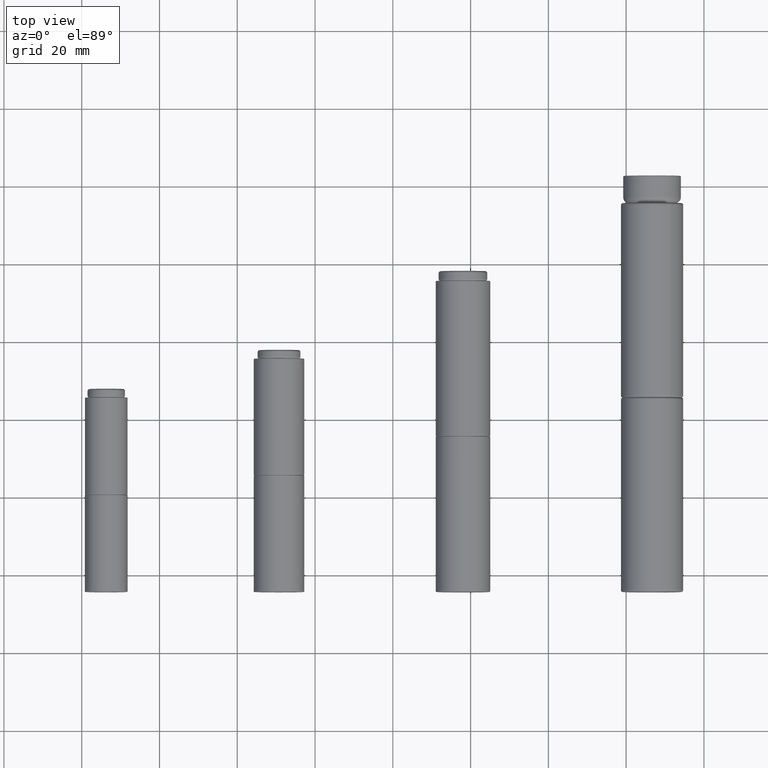
[diagram: clean part render]
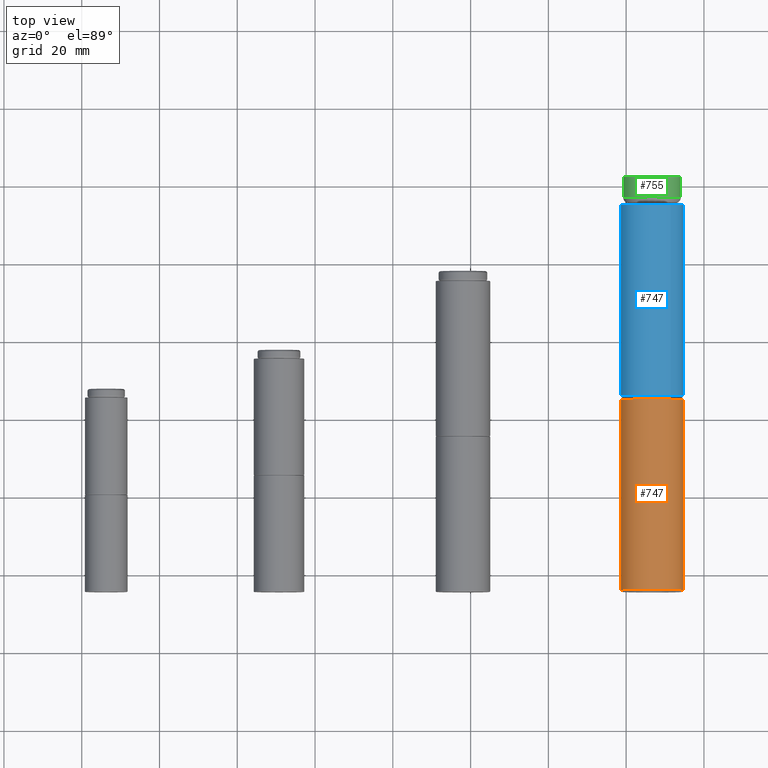
[diagram: same view with three faces highlighted in distinct colors, each labeled with its STEP entity id]
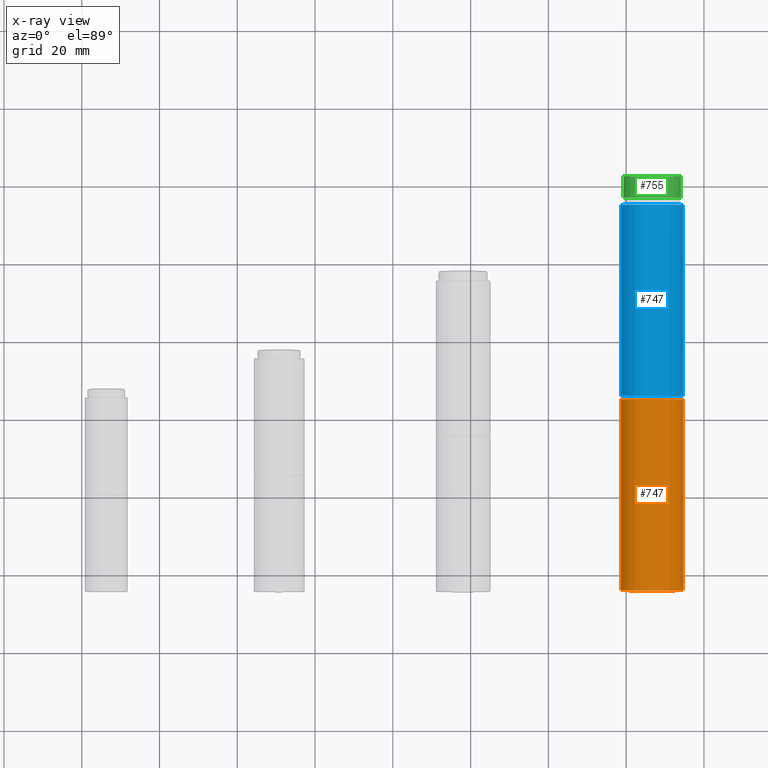
[diagram: x-ray of the same camera — body ghosted, the three highlighted faces saturated]
A machine part, top view with three faces highlighted in distinct colors.
The next image is the same camera in x-ray (body ghosted, the three faces saturated) — at least one of them is partly hidden behind the body in this view.
Their STEP definitions:

[orange] entity #747 — the highlighted cylindrical surface (bore or boss wall) has radius 8 mm, axis along (0, 1, 0).
#140=CYLINDRICAL_SURFACE('',#867,8.);
#179=FACE_BOUND('',#336,.T.);
#239=FACE_OUTER_BOUND('',#335,.T.);
#335=EDGE_LOOP('',(#635));
#336=EDGE_LOOP('',(#636));
#421=CIRCLE('',#866,8.);
#422=CIRCLE('',#868,8.);
#481=VERTEX_POINT('',#1359);
#482=VERTEX_POINT('',#1362);
#541=EDGE_CURVE('',#481,#481,#421,.T.);
#542=EDGE_CURVE('',#482,#482,#422,.T.);
#635=ORIENTED_EDGE('',*,*,#542,.F.);
#636=ORIENTED_EDGE('',*,*,#541,.F.);
#747=ADVANCED_FACE('',(#239,#179),#140,.T.);
#866=AXIS2_PLACEMENT_3D('',#1360,#1102,#1103);
#867=AXIS2_PLACEMENT_3D('',#1361,#1104,#1105);
#868=AXIS2_PLACEMENT_3D('',#1363,#1106,#1107);
#1102=DIRECTION('center_axis',(0.,0.,-1.));
#1103=DIRECTION('ref_axis',(-1.,0.,0.));
#1104=DIRECTION('center_axis',(0.,0.,1.));
#1105=DIRECTION('ref_axis',(-1.,0.,0.));
#1106=DIRECTION('center_axis',(0.,0.,1.));
#1107=DIRECTION('ref_axis',(-1.,0.,0.));
#1359=CARTESIAN_POINT('',(8.,-9.79717439317883E-16,0.5));
#1360=CARTESIAN_POINT('Origin',(0.,0.,0.5));
#1361=CARTESIAN_POINT('Origin',(0.,0.,0.));
#1362=CARTESIAN_POINT('',(8.,9.79717439317883E-16,49.5));
#1363=CARTESIAN_POINT('Origin',(0.,0.,49.5));

[blue] entity #747 — the highlighted cylindrical surface (bore or boss wall) has radius 8 mm, axis along (0, 1, 0).
#140=CYLINDRICAL_SURFACE('',#867,8.);
#179=FACE_BOUND('',#336,.T.);
#239=FACE_OUTER_BOUND('',#335,.T.);
#335=EDGE_LOOP('',(#635));
#336=EDGE_LOOP('',(#636));
#421=CIRCLE('',#866,8.);
#422=CIRCLE('',#868,8.);
#481=VERTEX_POINT('',#1359);
#482=VERTEX_POINT('',#1362);
#541=EDGE_CURVE('',#481,#481,#421,.T.);
#542=EDGE_CURVE('',#482,#482,#422,.T.);
#635=ORIENTED_EDGE('',*,*,#542,.F.);
#636=ORIENTED_EDGE('',*,*,#541,.F.);
#747=ADVANCED_FACE('',(#239,#179),#140,.T.);
#866=AXIS2_PLACEMENT_3D('',#1360,#1102,#1103);
#867=AXIS2_PLACEMENT_3D('',#1361,#1104,#1105);
#868=AXIS2_PLACEMENT_3D('',#1363,#1106,#1107);
#1102=DIRECTION('center_axis',(0.,0.,-1.));
#1103=DIRECTION('ref_axis',(-1.,0.,0.));
#1104=DIRECTION('center_axis',(0.,0.,1.));
#1105=DIRECTION('ref_axis',(-1.,0.,0.));
#1106=DIRECTION('center_axis',(0.,0.,1.));
#1107=DIRECTION('ref_axis',(-1.,0.,0.));
#1359=CARTESIAN_POINT('',(8.,-9.79717439317883E-16,0.5));
#1360=CARTESIAN_POINT('Origin',(0.,0.,0.5));
#1361=CARTESIAN_POINT('Origin',(0.,0.,0.));
#1362=CARTESIAN_POINT('',(8.,9.79717439317883E-16,49.5));
#1363=CARTESIAN_POINT('Origin',(0.,0.,49.5));

[green] entity #755 — the highlighted cylindrical surface (bore or boss wall) has radius 7.4 mm, axis along (0, 1, 0).
#142=CYLINDRICAL_SURFACE('',#884,7.4);
#186=FACE_BOUND('',#351,.T.);
#247=FACE_OUTER_BOUND('',#350,.T.);
#350=EDGE_LOOP('',(#650));
#351=EDGE_LOOP('',(#651));
#428=CIRCLE('',#882,7.4);
#430=CIRCLE('',#885,7.4);
#488=VERTEX_POINT('',#1382);
#490=VERTEX_POINT('',#1387);
#548=EDGE_CURVE('',#488,#488,#428,.T.);
#550=EDGE_CURVE('',#490,#490,#430,.T.);
#650=ORIENTED_EDGE('',*,*,#550,.F.);
#651=ORIENTED_EDGE('',*,*,#548,.F.);
#755=ADVANCED_FACE('',(#247,#186),#142,.T.);
#882=AXIS2_PLACEMENT_3D('',#1383,#1134,#1135);
#884=AXIS2_PLACEMENT_3D('',#1386,#1138,#1139);
#885=AXIS2_PLACEMENT_3D('',#1388,#1140,#1141);
#1134=DIRECTION('center_axis',(-1.22124532708767E-16,1.,0.));
#1135=DIRECTION('ref_axis',(1.,1.21899487501073E-16,0.));
#1138=DIRECTION('center_axis',(-1.22124532708767E-16,1.,0.));
#1139=DIRECTION('ref_axis',(-1.,0.,0.));
#1140=DIRECTION('center_axis',(1.22124532708767E-16,-1.,0.));
#1141=DIRECTION('ref_axis',(1.,1.12522603847144E-16,0.));
#1382=CARTESIAN_POINT('',(-7.4,-0.200000000000001,9.06238631369041E-16));
#1383=CARTESIAN_POINT('Origin',(2.44249065417535E-17,-0.2,0.));
#1386=CARTESIAN_POINT('Origin',(4.27435864480685E-16,-3.5,0.));
#1387=CARTESIAN_POINT('',(-7.39999999999999,-5.49999999999998,-9.06238631369041E-16));
#1388=CARTESIAN_POINT('Origin',(6.71684929898217E-16,-5.49999999999997,
0.));